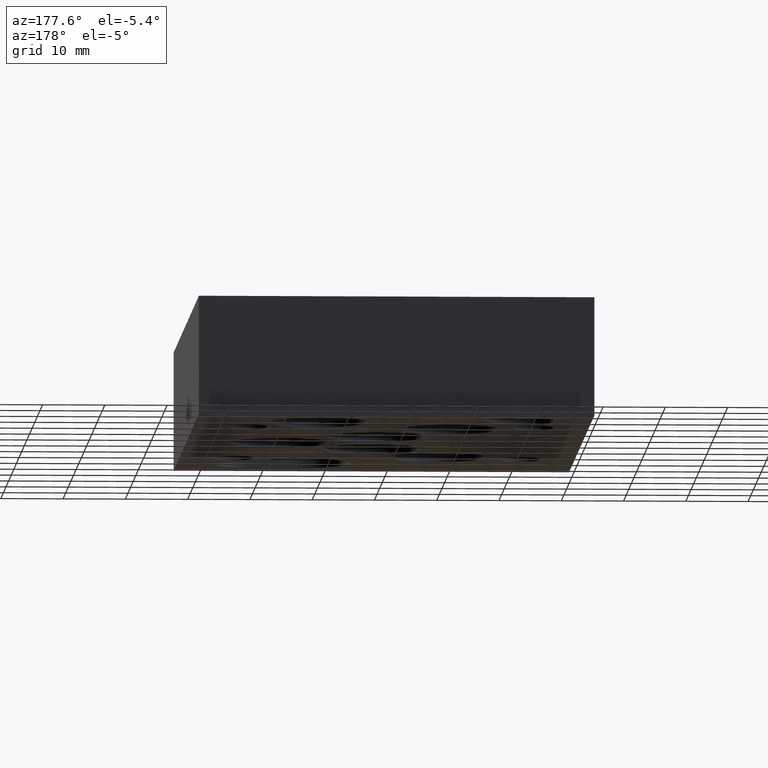
[diagram: clean part render]
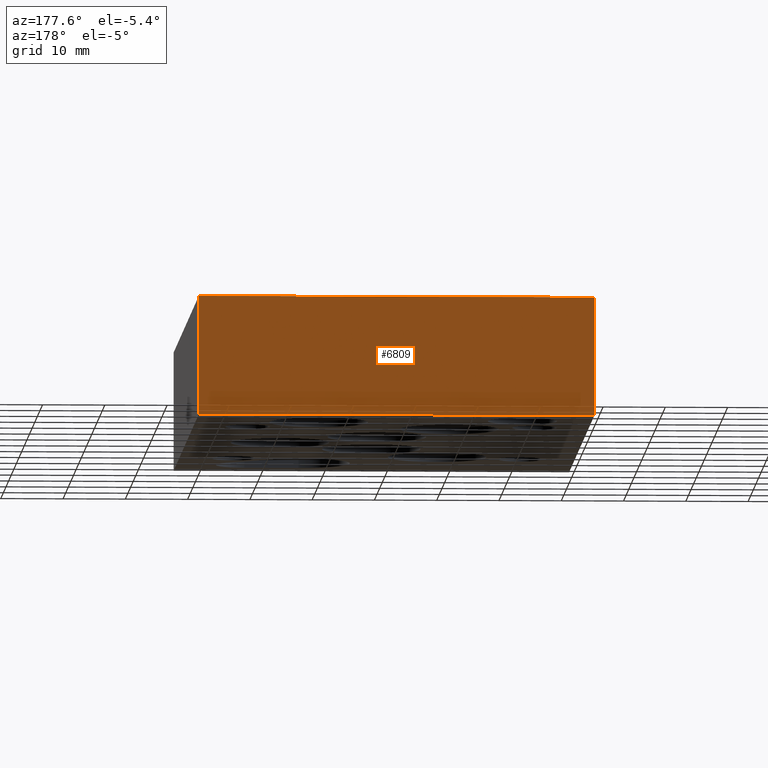
[diagram: same view with one face highlighted and labeled with its STEP entity id]
A machine part, auxiliary view. The second image highlights one B-rep face of the part: STEP entity #6809.
In plain terms, the highlighted planar face has unit normal (0, 1, 0).
Its self-contained STEP definition (entity closure, byte-faithful):
#573=FACE_OUTER_BOUND('',#974,.T.);
#974=EDGE_LOOP('',(#6195,#6196,#6197,#6198));
#1682=LINE('',#11833,#2415);
#1694=LINE('',#11875,#2427);
#1709=LINE('',#11998,#2442);
#1710=LINE('',#12000,#2443);
#2415=VECTOR('',#8306,2.5);
#2427=VECTOR('',#8342,2.5);
#2442=VECTOR('',#8491,0.75);
#2443=VECTOR('',#8494,0.75);
#3230=VERTEX_POINT('',#11829);
#3231=VERTEX_POINT('',#11831);
#3248=VERTEX_POINT('',#11872);
#3249=VERTEX_POINT('',#11874);
#4185=EDGE_CURVE('',#3230,#3231,#1682,.T.);
#4205=EDGE_CURVE('',#3249,#3248,#1694,.T.);
#4263=EDGE_CURVE('',#3248,#3230,#1709,.T.);
#4264=EDGE_CURVE('',#3249,#3231,#1710,.T.);
#6195=ORIENTED_EDGE('',*,*,#4185,.T.);
#6196=ORIENTED_EDGE('',*,*,#4264,.F.);
#6197=ORIENTED_EDGE('',*,*,#4205,.T.);
#6198=ORIENTED_EDGE('',*,*,#4263,.T.);
#6454=PLANE('',#7140);
#6809=ADVANCED_FACE('',(#573),#6454,.T.);
#7140=AXIS2_PLACEMENT_3D('',#11999,#8492,#8493);
#8306=DIRECTION('',(1.,0.,0.));
#8342=DIRECTION('',(-1.,0.,0.));
#8491=DIRECTION('',(0.,0.,1.));
#8492=DIRECTION('center_axis',(0.,1.,0.));
#8493=DIRECTION('ref_axis',(0.,0.,1.));
#8494=DIRECTION('',(0.,0.,1.));
#11829=CARTESIAN_POINT('',(0.,3.812,0.75));
#11831=CARTESIAN_POINT('',(2.5,3.812,0.75));
#11833=CARTESIAN_POINT('',(0.,3.812,0.75));
#11872=CARTESIAN_POINT('',(0.,3.812,0.));
#11874=CARTESIAN_POINT('',(2.5,3.812,0.));
#11875=CARTESIAN_POINT('',(2.5,3.812,0.));
#11998=CARTESIAN_POINT('',(0.,3.812,0.));
#11999=CARTESIAN_POINT('Origin',(0.,3.812,0.));
#12000=CARTESIAN_POINT('',(2.5,3.812,0.));